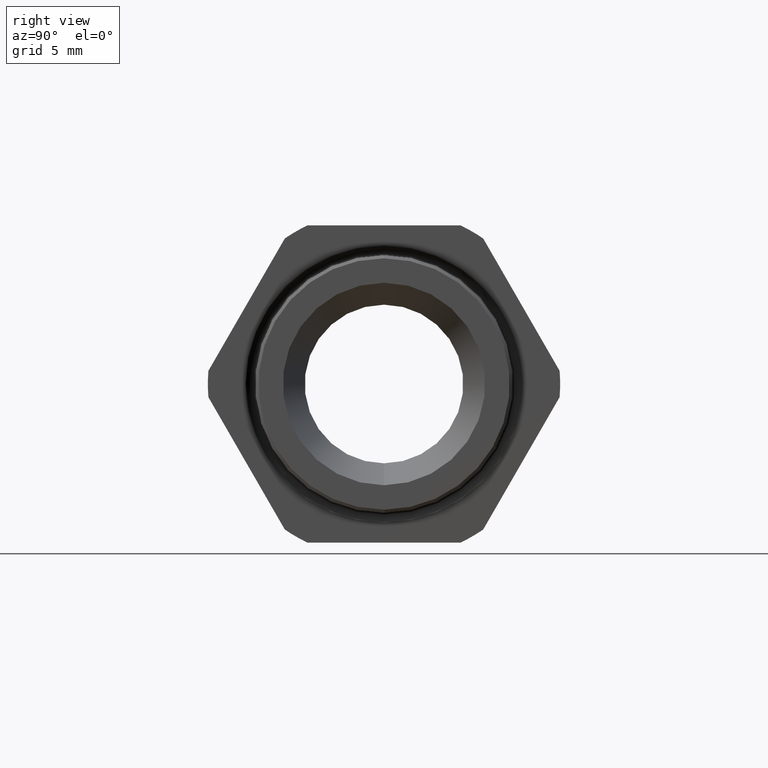
[diagram: clean part render]
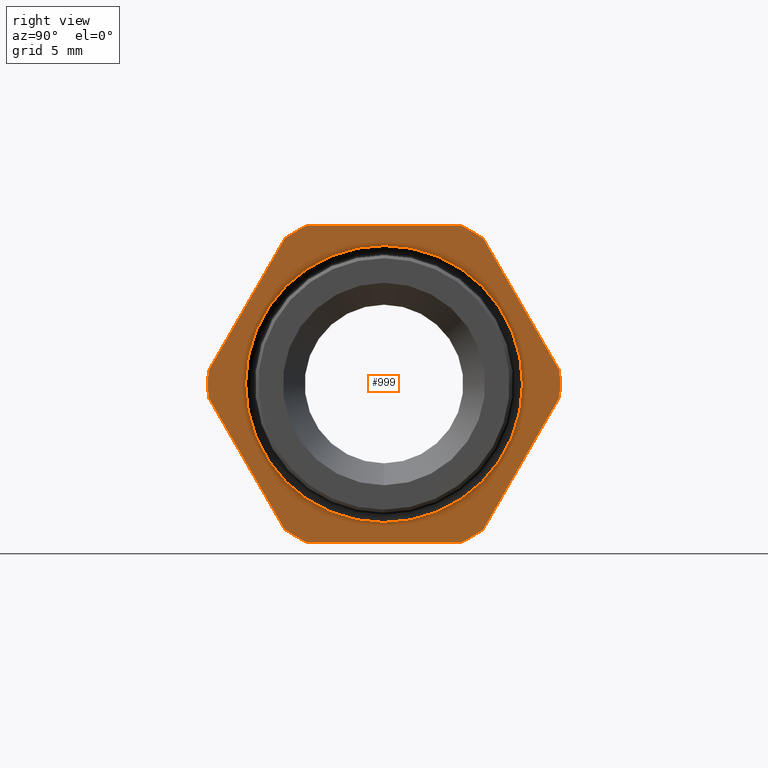
[diagram: same view with one face highlighted and labeled with its STEP entity id]
A machine part, right view. The second image highlights one B-rep face of the part: STEP entity #999.
In plain terms, the highlighted planar face has unit normal (1, 0, 0).
Its self-contained STEP definition (entity closure, byte-faithful):
#862 = ORIENTED_EDGE ( 'NONE', *, *, #977, .T. ) ;
#917 = EDGE_LOOP ( 'NONE', ( #918, #862, #979, #982, #985, #988, #991, #964, #967, #970, #973, #976 ) ) ;
#918 = ORIENTED_EDGE ( 'NONE', *, *, #919, .T. ) ;
#919 = EDGE_CURVE ( 'NONE', #920, #921, #2735, .T. ) ;
#920 = VERTEX_POINT ( 'NONE', #2731 ) ;
#921 = VERTEX_POINT ( 'NONE', #2730 ) ;
#962 = EDGE_CURVE ( 'NONE', #990, #963, #2787, .T. ) ;
#963 = VERTEX_POINT ( 'NONE', #2783 ) ;
#964 = ORIENTED_EDGE ( 'NONE', *, *, #965, .T. ) ;
#965 = EDGE_CURVE ( 'NONE', #963, #966, #2782, .T. ) ;
#966 = VERTEX_POINT ( 'NONE', #2777 ) ;
#967 = ORIENTED_EDGE ( 'NONE', *, *, #968, .T. ) ;
#968 = EDGE_CURVE ( 'NONE', #966, #969, #2776, .T. ) ;
#969 = VERTEX_POINT ( 'NONE', #2834 ) ;
#970 = ORIENTED_EDGE ( 'NONE', *, *, #971, .T. ) ;
#971 = EDGE_CURVE ( 'NONE', #969, #972, #2833, .T. ) ;
#972 = VERTEX_POINT ( 'NONE', #2828 ) ;
#973 = ORIENTED_EDGE ( 'NONE', *, *, #974, .T. ) ;
#974 = EDGE_CURVE ( 'NONE', #972, #975, #2827, .T. ) ;
#975 = VERTEX_POINT ( 'NONE', #2823 ) ;
#976 = ORIENTED_EDGE ( 'NONE', *, *, #1032, .T. ) ;
#977 = EDGE_CURVE ( 'NONE', #921, #978, #2822, .T. ) ;
#978 = VERTEX_POINT ( 'NONE', #2817 ) ;
#979 = ORIENTED_EDGE ( 'NONE', *, *, #980, .T. ) ;
#980 = EDGE_CURVE ( 'NONE', #978, #981, #2816, .T. ) ;
#981 = VERTEX_POINT ( 'NONE', #2812 ) ;
#982 = ORIENTED_EDGE ( 'NONE', *, *, #983, .T. ) ;
#983 = EDGE_CURVE ( 'NONE', #981, #984, #2811, .T. ) ;
#984 = VERTEX_POINT ( 'NONE', #2806 ) ;
#985 = ORIENTED_EDGE ( 'NONE', *, *, #986, .T. ) ;
#986 = EDGE_CURVE ( 'NONE', #984, #987, #2871, .T. ) ;
#987 = VERTEX_POINT ( 'NONE', #2867 ) ;
#988 = ORIENTED_EDGE ( 'NONE', *, *, #989, .T. ) ;
#989 = EDGE_CURVE ( 'NONE', #987, #990, #2866, .T. ) ;
#990 = VERTEX_POINT ( 'NONE', #2861 ) ;
#991 = ORIENTED_EDGE ( 'NONE', *, *, #962, .T. ) ;
#999 = ADVANCED_FACE ( 'NONE', ( #2846, #2845 ), #2844, .T. ) ;
#1032 = EDGE_CURVE ( 'NONE', #975, #920, #2945, .T. ) ;
#1033 = EDGE_LOOP ( 'NONE', ( #1034, #1035 ) ) ;
#1034 = ORIENTED_EDGE ( 'NONE', *, *, #4055, .T. ) ;
#1035 = ORIENTED_EDGE ( 'NONE', *, *, #1036, .T. ) ;
#1036 = EDGE_CURVE ( 'NONE', #4050, #4052, #2940, .T. ) ;
#2730 = CARTESIAN_POINT ( 'NONE',  ( -0.3100000000000000000, 0.5202473208008777700, -0.03890520787129511700 ) ) ;
#2731 = CARTESIAN_POINT ( 'NONE',  ( -0.3100000000000000000, 0.2938165587564948700, -0.4310947921287048800 ) ) ;
#2732 = DIRECTION ( 'NONE',  ( 0.0000000000000000000, 0.4999999999999998300, 0.8660254037844388200 ) ) ;
#2733 = VECTOR ( 'NONE', #2732, 39.37007874015748100 ) ;
#2734 = CARTESIAN_POINT ( 'NONE',  ( -0.3100000000000000000, 0.6420319397786862200, 0.1720319397786861100 ) ) ;
#2735 = LINE ( 'NONE', #2734, #2733 ) ;
#2776 = LINE ( 'NONE', #2837, #2836 ) ;
#2777 = CARTESIAN_POINT ( 'NONE',  ( -0.3100000000000000000, -0.5202473208008777700, -0.03890520787129508900 ) ) ;
#2778 = DIRECTION ( 'NONE',  ( 0.0000000000000000000, 0.0000000000000000000, -1.000000000000000000 ) ) ;
#2779 = DIRECTION ( 'NONE',  ( 1.000000000000000000, 0.0000000000000000000, 0.0000000000000000000 ) ) ;
#2780 = CARTESIAN_POINT ( 'NONE',  ( -0.3100000000000000000, 0.0000000000000000000, 0.0000000000000000000 ) ) ;
#2781 = AXIS2_PLACEMENT_3D ( 'NONE', #2780, #2779, #2778 ) ;
#2782 = CIRCLE ( 'NONE', #2781, 0.5217000000000000500 ) ;
#2783 = CARTESIAN_POINT ( 'NONE',  ( -0.3100000000000000000, -0.5202473208008777700, 0.03890520787129464500 ) ) ;
#2784 = DIRECTION ( 'NONE',  ( 0.0000000000000000000, -0.4999999999999996100, -0.8660254037844388200 ) ) ;
#2785 = VECTOR ( 'NONE', #2784, 39.37007874015748900 ) ;
#2786 = CARTESIAN_POINT ( 'NONE',  ( -0.3100000000000000000, -0.1720319397786865500, 0.6420319397786857800 ) ) ;
#2787 = LINE ( 'NONE', #2786, #2785 ) ;
#2806 = CARTESIAN_POINT ( 'NONE',  ( -0.3100000000000000000, 0.2264307620443832800, 0.4699999999999999200 ) ) ;
#2807 = DIRECTION ( 'NONE',  ( 0.0000000000000000000, 0.0000000000000000000, -1.000000000000000000 ) ) ;
#2808 = DIRECTION ( 'NONE',  ( 1.000000000000000000, 0.0000000000000000000, 0.0000000000000000000 ) ) ;
#2809 = CARTESIAN_POINT ( 'NONE',  ( -0.3100000000000000000, 0.0000000000000000000, 0.0000000000000000000 ) ) ;
#2810 = AXIS2_PLACEMENT_3D ( 'NONE', #2809, #2808, #2807 ) ;
#2811 = CIRCLE ( 'NONE', #2810, 0.5217000000000000500 ) ;
#2812 = CARTESIAN_POINT ( 'NONE',  ( -0.3100000000000000000, 0.2938165587564949300, 0.4310947921287048300 ) ) ;
#2813 = DIRECTION ( 'NONE',  ( 0.0000000000000000000, -0.4999999999999998300, 0.8660254037844386000 ) ) ;
#2814 = VECTOR ( 'NONE', #2813, 39.37007874015748900 ) ;
#2815 = CARTESIAN_POINT ( 'NONE',  ( -0.3100000000000000000, 0.6420319397786863300, -0.1720319397786860500 ) ) ;
#2816 = LINE ( 'NONE', #2815, #2814 ) ;
#2817 = CARTESIAN_POINT ( 'NONE',  ( -0.3100000000000000000, 0.5202473208008776600, 0.03890520787129532500 ) ) ;
#2818 = DIRECTION ( 'NONE',  ( 0.0000000000000000000, 0.0000000000000000000, -1.000000000000000000 ) ) ;
#2819 = DIRECTION ( 'NONE',  ( 1.000000000000000000, 0.0000000000000000000, 0.0000000000000000000 ) ) ;
#2820 = CARTESIAN_POINT ( 'NONE',  ( -0.3100000000000000000, 0.0000000000000000000, 0.0000000000000000000 ) ) ;
#2821 = AXIS2_PLACEMENT_3D ( 'NONE', #2820, #2819, #2818 ) ;
#2822 = CIRCLE ( 'NONE', #2821, 0.5217000000000000500 ) ;
#2823 = CARTESIAN_POINT ( 'NONE',  ( -0.3100000000000000000, 0.2264307620443831200, -0.4700000000000000300 ) ) ;
#2824 = DIRECTION ( 'NONE',  ( 0.0000000000000000000, 1.000000000000000000, 0.0000000000000000000 ) ) ;
#2825 = VECTOR ( 'NONE', #2824, 39.37007874015748100 ) ;
#2826 = CARTESIAN_POINT ( 'NONE',  ( -0.3100000000000000000, 0.9400000000000000600, -0.4700000000000000300 ) ) ;
#2827 = LINE ( 'NONE', #2826, #2825 ) ;
#2828 = CARTESIAN_POINT ( 'NONE',  ( -0.3100000000000000000, -0.2264307620443831200, -0.4700000000000000300 ) ) ;
#2829 = DIRECTION ( 'NONE',  ( 0.0000000000000000000, 0.0000000000000000000, -1.000000000000000000 ) ) ;
#2830 = DIRECTION ( 'NONE',  ( 1.000000000000000000, 0.0000000000000000000, 0.0000000000000000000 ) ) ;
#2831 = CARTESIAN_POINT ( 'NONE',  ( -0.3100000000000000000, 0.0000000000000000000, 0.0000000000000000000 ) ) ;
#2832 = AXIS2_PLACEMENT_3D ( 'NONE', #2831, #2830, #2829 ) ;
#2833 = CIRCLE ( 'NONE', #2832, 0.5217000000000000500 ) ;
#2834 = CARTESIAN_POINT ( 'NONE',  ( -0.3100000000000000000, -0.2938165587564944800, -0.4310947921287051100 ) ) ;
#2835 = DIRECTION ( 'NONE',  ( 0.0000000000000000000, 0.5000000000000000000, -0.8660254037844386000 ) ) ;
#2836 = VECTOR ( 'NONE', #2835, 39.37007874015748900 ) ;
#2837 = CARTESIAN_POINT ( 'NONE',  ( -0.3100000000000000000, -0.1720319397786861700, -0.6420319397786863300 ) ) ;
#2840 = DIRECTION ( 'NONE',  ( 0.0000000000000000000, 0.0000000000000000000, -1.000000000000000000 ) ) ;
#2841 = DIRECTION ( 'NONE',  ( 1.000000000000000000, 0.0000000000000000000, 0.0000000000000000000 ) ) ;
#2842 = CARTESIAN_POINT ( 'NONE',  ( -0.3100000000000000000, 0.9400000000000000600, 0.0000000000000000000 ) ) ;
#2843 = AXIS2_PLACEMENT_3D ( 'NONE', #2842, #2841, #2840 ) ;
#2844 = PLANE ( 'NONE',  #2843 ) ;
#2845 = FACE_BOUND ( 'NONE', #1033, .T. ) ;
#2846 = FACE_OUTER_BOUND ( 'NONE', #917, .T. ) ;
#2861 = CARTESIAN_POINT ( 'NONE',  ( -0.3100000000000000000, -0.2938165587564948700, 0.4310947921287048800 ) ) ;
#2862 = DIRECTION ( 'NONE',  ( 0.0000000000000000000, 0.0000000000000000000, -1.000000000000000000 ) ) ;
#2863 = DIRECTION ( 'NONE',  ( 1.000000000000000000, 0.0000000000000000000, 0.0000000000000000000 ) ) ;
#2864 = CARTESIAN_POINT ( 'NONE',  ( -0.3100000000000000000, 0.0000000000000000000, 0.0000000000000000000 ) ) ;
#2865 = AXIS2_PLACEMENT_3D ( 'NONE', #2864, #2863, #2862 ) ;
#2866 = CIRCLE ( 'NONE', #2865, 0.5217000000000000500 ) ;
#2867 = CARTESIAN_POINT ( 'NONE',  ( -0.3100000000000000000, -0.2264307620443835600, 0.4699999999999997500 ) ) ;
#2868 = DIRECTION ( 'NONE',  ( 0.0000000000000000000, -1.000000000000000000, 0.0000000000000000000 ) ) ;
#2869 = VECTOR ( 'NONE', #2868, 39.37007874015748100 ) ;
#2870 = CARTESIAN_POINT ( 'NONE',  ( -0.3100000000000000000, 0.9400000000000000600, 0.4699999999999999200 ) ) ;
#2871 = LINE ( 'NONE', #2870, #2869 ) ;
#2937 = DIRECTION ( 'NONE',  ( 0.0000000000000000000, 0.0000000000000000000, -1.000000000000000000 ) ) ;
#2938 = DIRECTION ( 'NONE',  ( -1.000000000000000000, 0.0000000000000000000, 0.0000000000000000000 ) ) ;
#2939 = AXIS2_PLACEMENT_3D ( 'NONE', #2946, #2938, #2937 ) ;
#2940 = CIRCLE ( 'NONE', #2939, 0.4101888622149249000 ) ;
#2941 = DIRECTION ( 'NONE',  ( 0.0000000000000000000, 0.0000000000000000000, -1.000000000000000000 ) ) ;
#2942 = DIRECTION ( 'NONE',  ( 1.000000000000000000, 0.0000000000000000000, 0.0000000000000000000 ) ) ;
#2943 = CARTESIAN_POINT ( 'NONE',  ( -0.3100000000000000000, 0.0000000000000000000, 0.0000000000000000000 ) ) ;
#2944 = AXIS2_PLACEMENT_3D ( 'NONE', #2943, #2942, #2941 ) ;
#2945 = CIRCLE ( 'NONE', #2944, 0.5217000000000000500 ) ;
#2946 = CARTESIAN_POINT ( 'NONE',  ( -0.3100000000000000000, 0.0000000000000000000, 0.0000000000000000000 ) ) ;
#3589 = DIRECTION ( 'NONE',  ( 0.0000000000000000000, 0.0000000000000000000, -1.000000000000000000 ) ) ;
#3590 = DIRECTION ( 'NONE',  ( -1.000000000000000000, 0.0000000000000000000, 0.0000000000000000000 ) ) ;
#3591 = CARTESIAN_POINT ( 'NONE',  ( -0.3100000000000000000, 0.0000000000000000000, 0.0000000000000000000 ) ) ;
#3592 = AXIS2_PLACEMENT_3D ( 'NONE', #3591, #3590, #3589 ) ;
#3593 = CIRCLE ( 'NONE', #3592, 0.4101888622149249000 ) ;
#3594 = CARTESIAN_POINT ( 'NONE',  ( -0.3100000000000000000, 0.0000000000000000000, -0.4101888622149249000 ) ) ;
#3600 = CARTESIAN_POINT ( 'NONE',  ( -0.3100000000000000000, 5.023364771574023900E-017, 0.4101888622149249000 ) ) ;
#4050 = VERTEX_POINT ( 'NONE', #3600 ) ;
#4052 = VERTEX_POINT ( 'NONE', #3594 ) ;
#4055 = EDGE_CURVE ( 'NONE', #4052, #4050, #3593, .T. ) ;